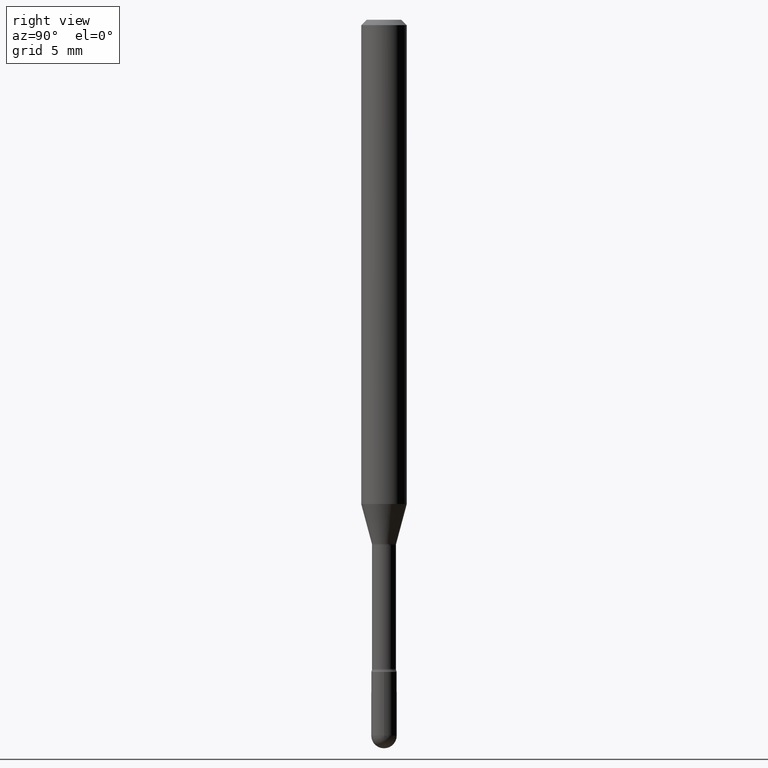
[diagram: clean part render]
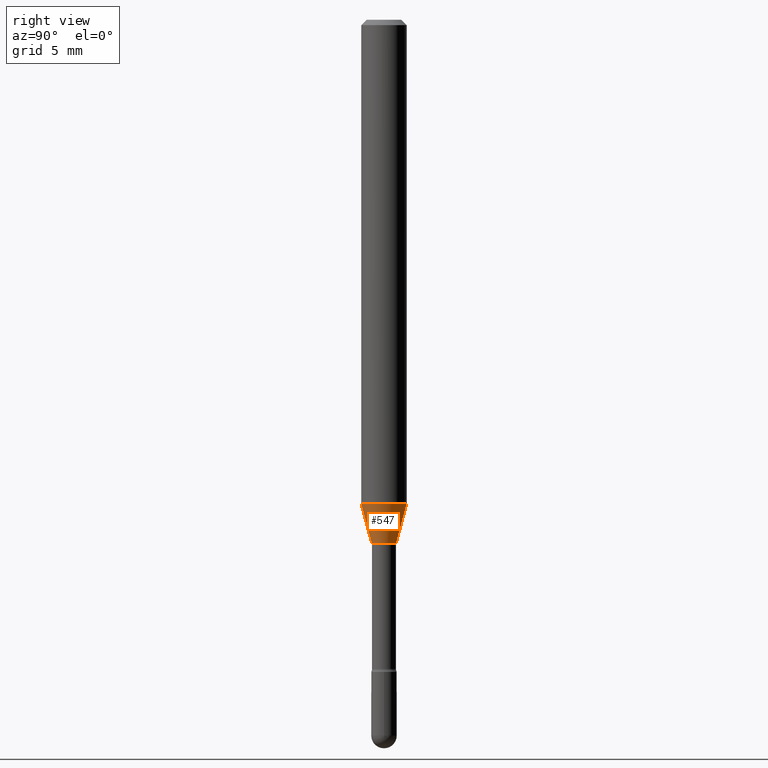
[diagram: same view with one face highlighted and labeled with its STEP entity id]
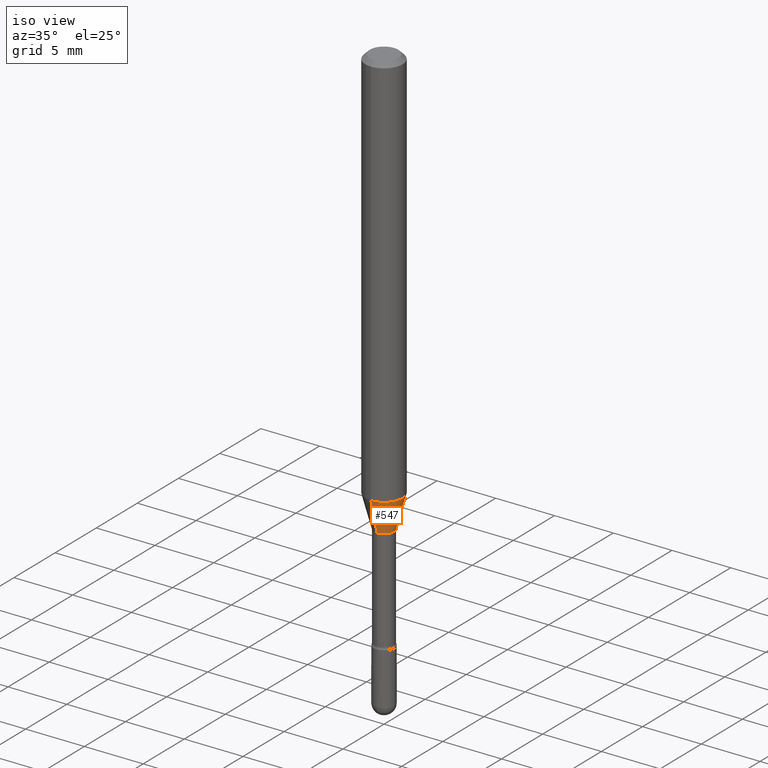
[diagram: same view with one face highlighted and labeled with its STEP entity id]
A machine part, right view. The second image highlights one B-rep face of the part: STEP entity #547.
A second angle (iso view) of the same face is appended — the face is thin or edge-on in the first view.
In plain terms, the highlighted conical surface has half-angle 15 deg.
Its self-contained STEP definition (entity closure, byte-faithful):
#18 = CARTESIAN_POINT ( 'NONE',  ( 4.440892098500948609E-16, 0.06249999999999532319, -1.329531296095961768 ) ) ;
#21 = DIRECTION ( 'NONE',  ( -2.445483522244811550E-29, 3.491460264608105036E-15, 1.000000000000000000 ) ) ;
#24 = ORIENTED_EDGE ( 'NONE', *, *, #348, .T. ) ;
#36 = LINE ( 'NONE', #197, #505 ) ;
#66 = DIRECTION ( 'NONE',  ( 1.839019923739599526E-15, 0.2588190451025248473, 0.9659258262890670910 ) ) ;
#83 = FACE_OUTER_BOUND ( 'NONE', #451, .T. ) ;
#90 = DIRECTION ( 'NONE',  ( -6.982962677686266711E-15, -1.000000000000000000, 0.000000000000000000 ) ) ;
#111 = ORIENTED_EDGE ( 'NONE', *, *, #379, .T. ) ;
#118 = VERTEX_POINT ( 'NONE', #382 ) ;
#147 = ORIENTED_EDGE ( 'NONE', *, *, #429, .F. ) ;
#162 = AXIS2_PLACEMENT_3D ( 'NONE', #340, #256, #90 ) ;
#182 = VECTOR ( 'NONE', #452, 39.37007874015749564 ) ;
#183 = VERTEX_POINT ( 'NONE', #18 ) ;
#192 = ORIENTED_EDGE ( 'NONE', *, *, #196, .F. ) ;
#196 = EDGE_CURVE ( 'NONE', #285, #183, #514, .T. ) ;
#197 = CARTESIAN_POINT ( 'NONE',  ( 2.374002335562076701E-16, 0.03341111260565896024, -1.438092501787272992 ) ) ;
#202 = CIRCLE ( 'NONE', #483, 0.03341111260566397706 ) ;
#256 = DIRECTION ( 'NONE',  ( -2.445483522244811550E-29, 3.491460264608105036E-15, 1.000000000000000000 ) ) ;
#265 = CARTESIAN_POINT ( 'NONE',  ( 3.251346876911460961E-29, -4.642005690871962526E-15, -1.329531296095961546 ) ) ;
#279 = LINE ( 'NONE', #323, #182 ) ;
#285 = VERTEX_POINT ( 'NONE', #444 ) ;
#323 = CARTESIAN_POINT ( 'NONE',  ( -2.333085523452895390E-16, -0.03341111260566900082, -1.438092501787272992 ) ) ;
#340 = CARTESIAN_POINT ( 'NONE',  ( 3.516831516584593251E-29, -5.021042826821123581E-15, -1.438092501787272992 ) ) ;
#348 = EDGE_CURVE ( 'NONE', #449, #118, #202, .T. ) ;
#358 = DIRECTION ( 'NONE',  ( -6.982962677686265922E-15, -1.000000000000000000, 4.370956789862821150E-15 ) ) ;
#379 = EDGE_CURVE ( 'NONE', #118, #183, #36, .T. ) ;
#382 = CARTESIAN_POINT ( 'NONE',  ( 3.407447217031514627E-16, 0.03341111260565895330, -1.438092501787272992 ) ) ;
#403 = CONICAL_SURFACE ( 'NONE', #162, 0.03341111260566397706, 0.2617993877991501850 ) ;
#409 = CARTESIAN_POINT ( 'NONE',  ( -2.333085523452895390E-16, -0.03341111260566900082, -1.438092501787272992 ) ) ;
#410 = AXIS2_PLACEMENT_3D ( 'NONE', #265, #21, #358 ) ;
#429 = EDGE_CURVE ( 'NONE', #449, #285, #279, .T. ) ;
#444 = CARTESIAN_POINT ( 'NONE',  ( -4.364351673553592768E-16, -0.06250000000000467681, -1.329531296095961101 ) ) ;
#449 = VERTEX_POINT ( 'NONE', #409 ) ;
#451 = EDGE_LOOP ( 'NONE', ( #24, #111, #192, #147 ) ) ;
#452 = DIRECTION ( 'NONE',  ( -1.807323732225329350E-15, -0.2588190451025180194, 0.9659258262890689783 ) ) ;
#463 = DIRECTION ( 'NONE',  ( -2.445483522244811550E-29, 3.491460264608105036E-15, 1.000000000000000000 ) ) ;
#464 = DIRECTION ( 'NONE',  ( -6.982962677686266711E-15, -1.000000000000000000, 0.000000000000000000 ) ) ;
#483 = AXIS2_PLACEMENT_3D ( 'NONE', #506, #463, #464 ) ;
#505 = VECTOR ( 'NONE', #66, 39.37007874015748143 ) ;
#506 = CARTESIAN_POINT ( 'NONE',  ( 3.516831516584593251E-29, -5.021042826821123581E-15, -1.438092501787272992 ) ) ;
#514 = CIRCLE ( 'NONE', #410, 0.06250000000000000000 ) ;
#547 = ADVANCED_FACE ( 'NONE', ( #83 ), #403, .T. ) ;